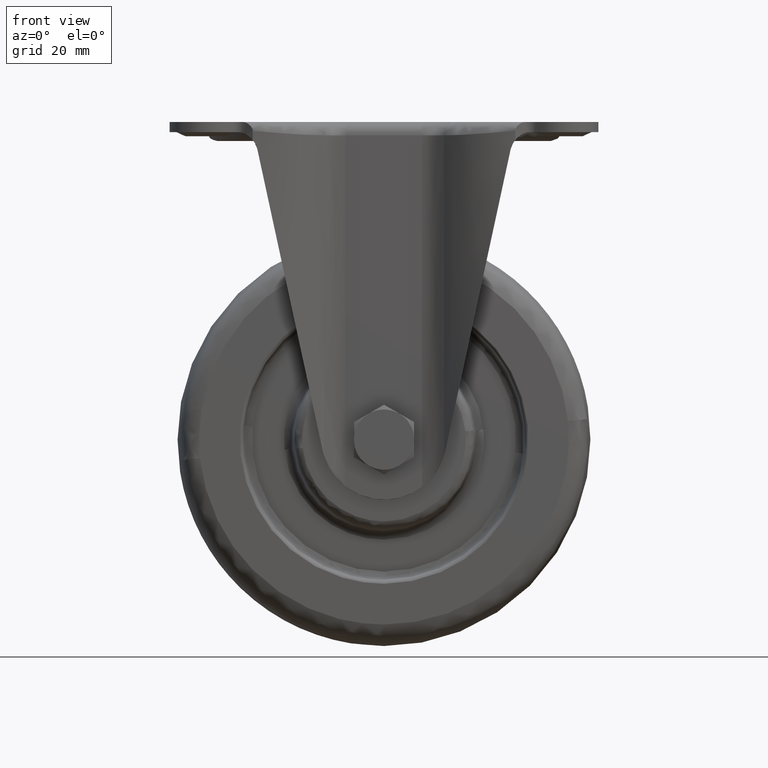
[diagram: clean part render]
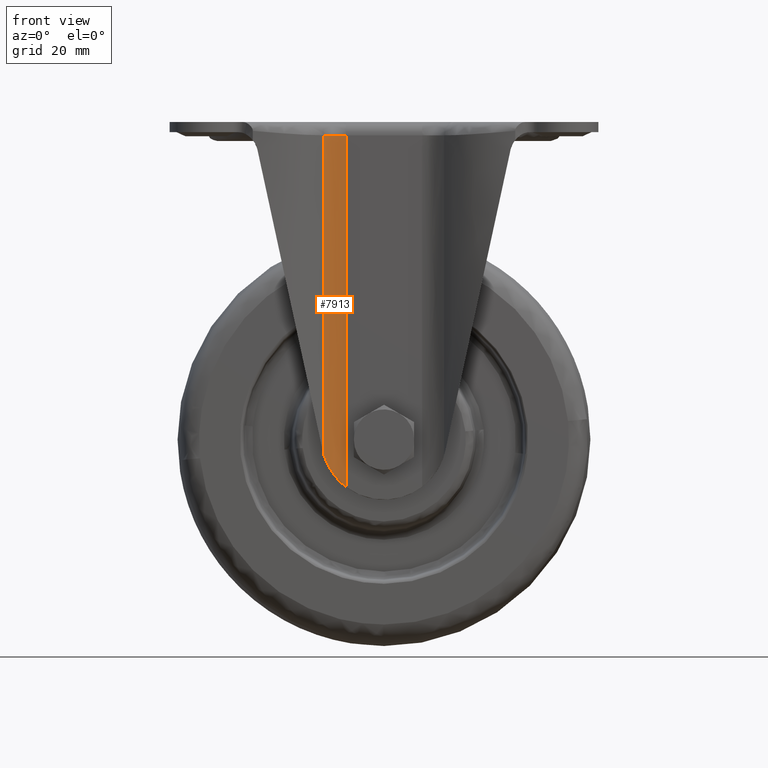
[diagram: same view with one face highlighted and labeled with its STEP entity id]
A machine part, front view. The second image highlights one B-rep face of the part: STEP entity #7913.
In plain terms, the highlighted face is a freeform B-spline surface patch.
Its self-contained STEP definition (entity closure, byte-faithful):
#7068=CARTESIAN_POINT('',(-11.998855098554341,-28.850000000047650,-4.200000000000000));
#7069=VERTEX_POINT('',#7068);
#7124=CARTESIAN_POINT('',(-18.914965390891851,-31.823452248050199,-4.200000000000000));
#7125=VERTEX_POINT('',#7124);
#7139=CARTESIAN_POINT('',(-11.998855098554341,-28.850000000047700,-4.200000000000000));
#7140=CARTESIAN_POINT('',(-16.096100331161331,-28.850000000047693,-4.200000000000000));
#7141=CARTESIAN_POINT('',(-18.914965390891840,-31.823452248050209,-4.200000000000000));
#7149=(BOUNDED_CURVE()B_SPLINE_CURVE(2,(#7139,#7140,#7141),.UNSPECIFIED.,.F.,.U.)CURVE()GEOMETRIC_REPRESENTATION_ITEM()QUASI_UNIFORM_CURVE()RATIONAL_B_SPLINE_CURVE((1.0,0.918692092121069,1.0))REPRESENTATION_ITEM(''));
#7150=EDGE_CURVE('',#7069,#7125,#7149,.T.);
#7830=CARTESIAN_POINT('',(-11.998855098554341,-28.850000000047700,-114.853968285316200));
#7831=VERTEX_POINT('',#7830);
#7832=CARTESIAN_POINT('',(-11.998855098554341,-28.850000000047700,-114.853968285316200));
#7833=CARTESIAN_POINT('',(-11.998855098554341,-28.850000000047650,-4.200000000000000));
#7834=QUASI_UNIFORM_CURVE('',1,(#7832,#7833),.UNSPECIFIED.,.F.,.U.);
#7835=EDGE_CURVE('',#7831,#7069,#7834,.T.);
#7859=CARTESIAN_POINT('',(-19.136403117673531,-32.065230940551722,-117.620317492449100));
#7860=CARTESIAN_POINT('',(-19.136403117673531,-32.065230940551722,-1.364492062688768));
#7861=CARTESIAN_POINT('',(-16.140492060254314,-28.678969490311665,-117.620317492449050));
#7862=CARTESIAN_POINT('',(-16.140492060254314,-28.678969490311665,-1.364492062688768));
#7863=CARTESIAN_POINT('',(-11.622704674940341,-28.857426248229601,-117.620317492449130));
#7864=CARTESIAN_POINT('',(-11.622704674940341,-28.857426248229601,-1.364492062688768));
#7872=(BOUNDED_SURFACE()B_SPLINE_SURFACE(1,2,((#7859,#7861,#7863),(#7860,#7862,#7864)),.UNSPECIFIED.,.F.,.F.,.U.)B_SPLINE_SURFACE_WITH_KNOTS((2,2),(3,3),(0.0,116.255825429760310),(0.0,8.584038601922808),.UNSPECIFIED.)GEOMETRIC_REPRESENTATION_ITEM()RATIONAL_B_SPLINE_SURFACE(((1.0,0.899512526848063,0.991242650513314),(1.0,0.899512526848063,0.991242650513314)))REPRESENTATION_ITEM('')SURFACE());
#7873=ORIENTED_EDGE('',*,*,#7835,.T.);
#7874=ORIENTED_EDGE('',*,*,#7150,.T.);
#7875=CARTESIAN_POINT('',(-18.914965390891851,-31.823452248050199,-104.978530906988400));
#7876=VERTEX_POINT('',#7875);
#7877=CARTESIAN_POINT('',(-18.914965390891851,-31.823452248050199,-104.978530906988400));
#7878=CARTESIAN_POINT('',(-18.914965390891851,-31.823452248050199,-4.200000000000000));
#7879=QUASI_UNIFORM_CURVE('',1,(#7877,#7878),.UNSPECIFIED.,.F.,.U.);
#7880=EDGE_CURVE('',#7876,#7125,#7879,.T.);
#7881=ORIENTED_EDGE('',*,*,#7880,.F.);
#7882=CARTESIAN_POINT('',(-18.914965390891879,-31.823452248050248,-104.978530906988400));
#7883=CARTESIAN_POINT('',(-18.765710086906790,-31.666011749921829,-105.458065443264700));
#7884=CARTESIAN_POINT('',(-18.599152610271219,-31.501124743664661,-105.929142956220200));
#7885=CARTESIAN_POINT('',(-18.231078340434991,-31.165968845456160,-106.857395984430300));
#7886=CARTESIAN_POINT('',(-18.029560126031068,-30.995666048350412,-107.314559830347700));
#7887=CARTESIAN_POINT('',(-17.754835103787450,-30.784317024220542,-107.878599665892490));
#7888=CARTESIAN_POINT('',(-17.698745783773571,-30.742121147626680,-107.991035020972600));
#7889=CARTESIAN_POINT('',(-17.584242001875609,-30.657992467811258,-108.215185820353100));
#7890=CARTESIAN_POINT('',(-17.525779247702420,-30.616026022026091,-108.326990956902310));
#7891=CARTESIAN_POINT('',(-17.347189053237550,-30.490934539772152,-108.660713420191400));
#7892=CARTESIAN_POINT('',(-17.224109079976440,-30.408785622087169,-108.880495152910700));
#7893=CARTESIAN_POINT('',(-16.842750511452660,-30.167319040215510,-109.532083203875200));
#7894=CARTESIAN_POINT('',(-16.572381381230880,-30.012980917715009,-109.956153777800590));
#7895=CARTESIAN_POINT('',(-15.998406549350070,-29.723918948273159,-110.784877814129500));
#7896=CARTESIAN_POINT('',(-15.694806828088570,-29.589164168764661,-111.189526223048800));
#7897=CARTESIAN_POINT('',(-15.052429105482100,-29.345923423892732,-111.979989755808010));
#7898=CARTESIAN_POINT('',(-14.713664713664601,-29.237397356104839,-112.365802827315090));
#7899=CARTESIAN_POINT('',(-14.176741606584240,-29.100354050660780,-112.930444352601800));
#7900=CARTESIAN_POINT('',(-13.992960203221370,-29.058978350444331,-113.116307938982200));
#7901=CARTESIAN_POINT('',(-13.709654234768600,-29.004323157507891,-113.391549105528700));
#7902=CARTESIAN_POINT('',(-13.613945630219719,-28.987341097482521,-113.482703548687000));
#7903=CARTESIAN_POINT('',(-13.419898193153649,-28.956030814576870,-113.663819438370890));
#7904=CARTESIAN_POINT('',(-13.321819466252290,-28.941748718032841,-113.753533501059100));
#7905=CARTESIAN_POINT('',(-12.827899938326100,-28.877772032665320,-114.196295623950800));
#7906=CARTESIAN_POINT('',(-12.419799067794340,-28.850000000047700,-114.533538606443100));
#7907=CARTESIAN_POINT('',(-11.998855098554330,-28.850000000047700,-114.853968285316200));
#7908=B_SPLINE_CURVE_WITH_KNOTS('',3,(#7882,#7883,#7884,#7885,#7886,#7887,#7888,#7889,#7890,#7891,#7892,#7893,#7894,#7895,#7896,#7897,#7898,#7899,#7900,#7901,#7902,#7903,#7904,#7905,#7906,#7907),.UNSPECIFIED.,.F.,.U.,(4,2,2,2,2,2,2,2,2,2,2,2,4),(0.0,0.124999999999997,0.249999999999995,0.281249999999996,0.312499999999998,0.374999999999998,0.499999999999998,0.624999999999997,0.749999999999997,0.812499999999997,0.843749999999997,0.874999999999997,1.0),.UNSPECIFIED.);
#7909=EDGE_CURVE('',#7876,#7831,#7908,.T.);
#7910=ORIENTED_EDGE('',*,*,#7909,.T.);
#7911=EDGE_LOOP('',(#7873,#7874,#7881,#7910));
#7912=FACE_OUTER_BOUND('',#7911,.T.);
#7913=ADVANCED_FACE('',(#7912),#7872,.F.);